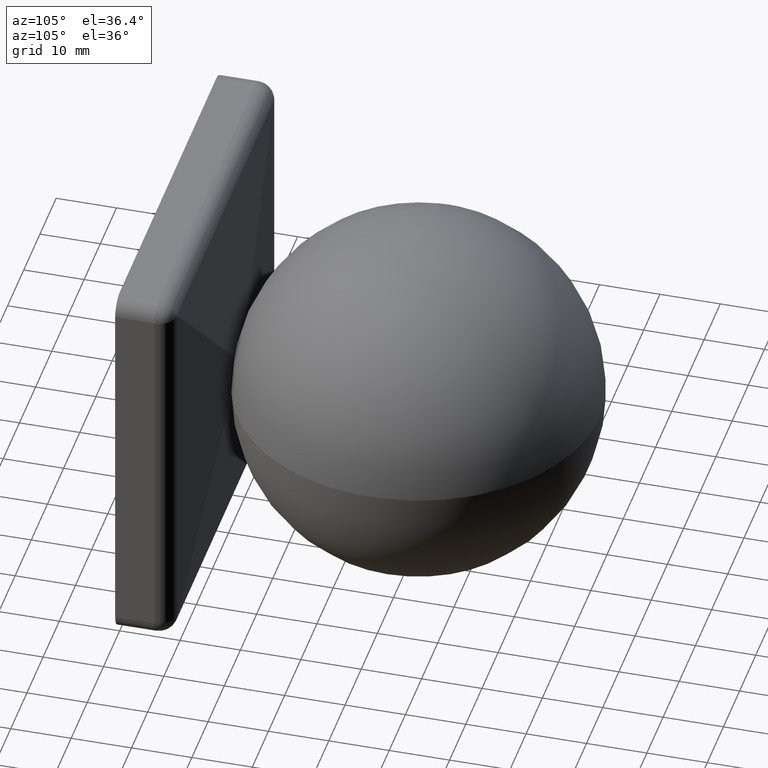
[diagram: clean part render]
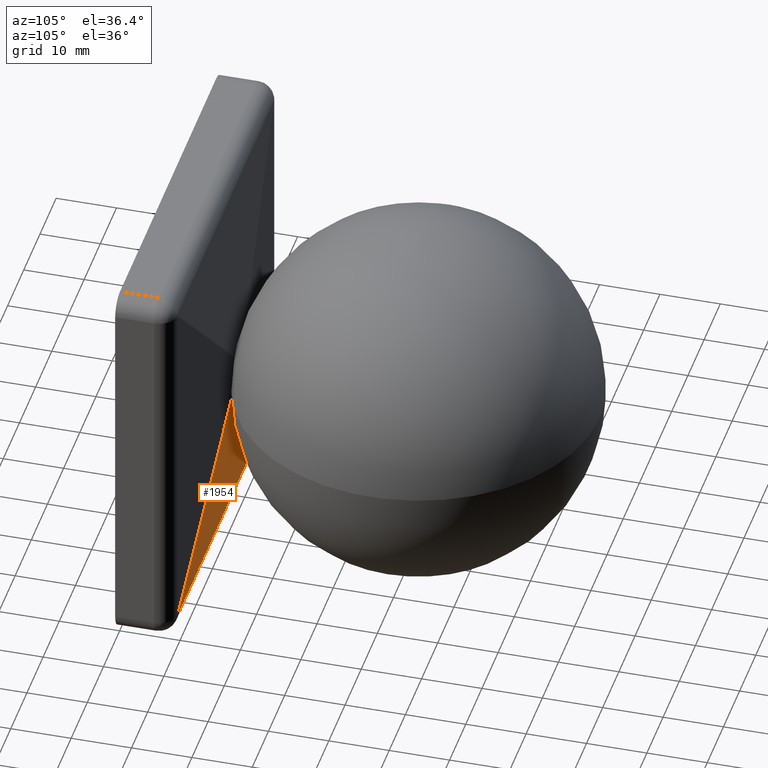
[diagram: same view with one face highlighted and labeled with its STEP entity id]
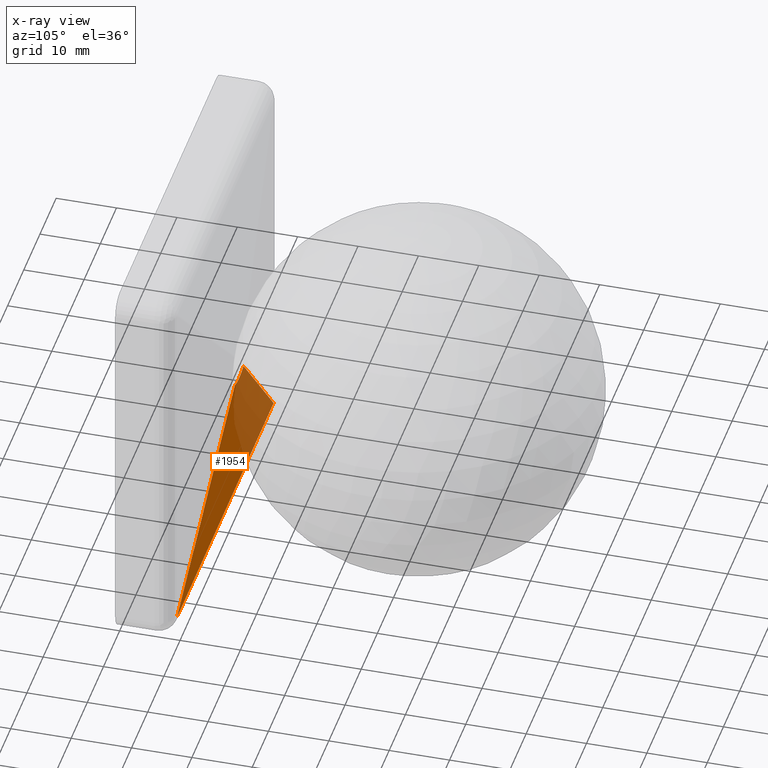
[diagram: x-ray of the same camera — body ghosted, the highlighted face saturated]
A machine part, auxiliary view. The second image highlights one B-rep face of the part: STEP entity #1954.
The next image is the same camera in x-ray: the body ghosted, the highlighted face saturated — about 39% of this face is hidden behind the body in this view.
In plain terms, the highlighted planar face has unit normal (-0, 0.9965, -0.0837).
Its self-contained STEP definition (entity closure, byte-faithful):
#121 = VECTOR ( 'NONE', #10191, 1000.000000000000000 ) ;
#798 = CARTESIAN_POINT ( 'NONE',  ( 29.74999999999996800, 9.489463299845061400, -30.00121540334830400 ) ) ;
#1286 = CARTESIAN_POINT ( 'NONE',  ( 15.94056540707901000, 13.32900661136431000, 15.68935000373068400 ) ) ;
#1337 = DIRECTION ( 'NONE',  ( 0.0000000000000000000, 0.08373846778277516100, 0.9964877666150211400 ) ) ;
#1431 = VERTEX_POINT ( 'NONE', #798 ) ;
#1954 = ADVANCED_FACE ( 'NONE', ( #10488 ), #10647, .T. ) ;
#2419 = CIRCLE ( 'NONE', #2681, 6.039178573658228200 ) ;
#2681 = AXIS2_PLACEMENT_3D ( 'NONE', #3983, #5419, #1337 ) ;
#3182 = ORIENTED_EDGE ( 'NONE', *, *, #9507, .T. ) ;
#3503 = ORIENTED_EDGE ( 'NONE', *, *, #4730, .T. ) ;
#3983 = CARTESIAN_POINT ( 'NONE',  ( 5.463909892804143000E-016, 12.21735755690978400, 2.460726255721870500 ) ) ;
#4176 = VECTOR ( 'NONE', #15881, 1000.000000000000100 ) ;
#4730 = EDGE_CURVE ( 'NONE', #5891, #11353, #2419, .T. ) ;
#5213 = CARTESIAN_POINT ( 'NONE',  ( 29.87516576338099800, 9.478945168468506200, -30.12638116672933500 ) ) ;
#5419 = DIRECTION ( 'NONE',  ( 1.859367499585374500E-017, -0.9964877666150213600, 0.08373846778277503600 ) ) ;
#5891 = VERTEX_POINT ( 'NONE', #11731 ) ;
#6684 = DIRECTION ( 'NONE',  ( 0.0000000000000000000, 0.08373846778277503600, 0.9964877666150213600 ) ) ;
#6856 = CARTESIAN_POINT ( 'NONE',  ( 32.74999999999997900, 11.92635412096560200, -1.002214632013925400 ) ) ;
#8348 = ORIENTED_EDGE ( 'NONE', *, *, #13145, .T. ) ;
#9393 = DIRECTION ( 'NONE',  ( -1.859367499585374500E-017, 0.9964877666150213600, -0.08373846778277503600 ) ) ;
#9507 = EDGE_CURVE ( 'NONE', #1431, #11381, #16956, .T. ) ;
#9764 = CARTESIAN_POINT ( 'NONE',  ( 2.680674384043356900, 11.76419654488343400, -2.931889787391680700 ) ) ;
#10191 = DIRECTION ( 'NONE',  ( -1.000000000000000000, -0.0000000000000000000, 2.220446049250313100E-016 ) ) ;
#10488 = FACE_OUTER_BOUND ( 'NONE', #15538, .T. ) ;
#10647 = PLANE ( 'NONE',  #11349 ) ;
#11349 = AXIS2_PLACEMENT_3D ( 'NONE', #6856, #9393, #6684 ) ;
#11353 = VERTEX_POINT ( 'NONE', #9764 ) ;
#11380 = LINE ( 'NONE', #1286, #13427 ) ;
#11381 = VERTEX_POINT ( 'NONE', #11519 ) ;
#11390 = ORIENTED_EDGE ( 'NONE', *, *, #11559, .T. ) ;
#11519 = CARTESIAN_POINT ( 'NONE',  ( -29.74999999999997200, 9.489463299845061400, -30.00121540334829000 ) ) ;
#11559 = EDGE_CURVE ( 'NONE', #11381, #5891, #11380, .T. ) ;
#11731 = CARTESIAN_POINT ( 'NONE',  ( -2.680674384043364000, 11.76419654488343600, -2.931889787391690000 ) ) ;
#11973 = LINE ( 'NONE', #5213, #4176 ) ;
#13145 = EDGE_CURVE ( 'NONE', #11353, #1431, #11973, .T. ) ;
#13427 = VECTOR ( 'NONE', #16846, 1000.000000000000100 ) ;
#15287 = CARTESIAN_POINT ( 'NONE',  ( 32.74999999999997200, 9.489463299845061400, -30.00121540334830400 ) ) ;
#15538 = EDGE_LOOP ( 'NONE', ( #11390, #3503, #8348, #3182 ) ) ;
#15881 = DIRECTION ( 'NONE',  ( 0.7058617423977313600, -0.05931611280653213000, -0.7058617423977315800 ) ) ;
#16846 = DIRECTION ( 'NONE',  ( 0.7058617423977314700, 0.05931611280653215100, 0.7058617423977314700 ) ) ;
#16956 = LINE ( 'NONE', #15287, #121 ) ;